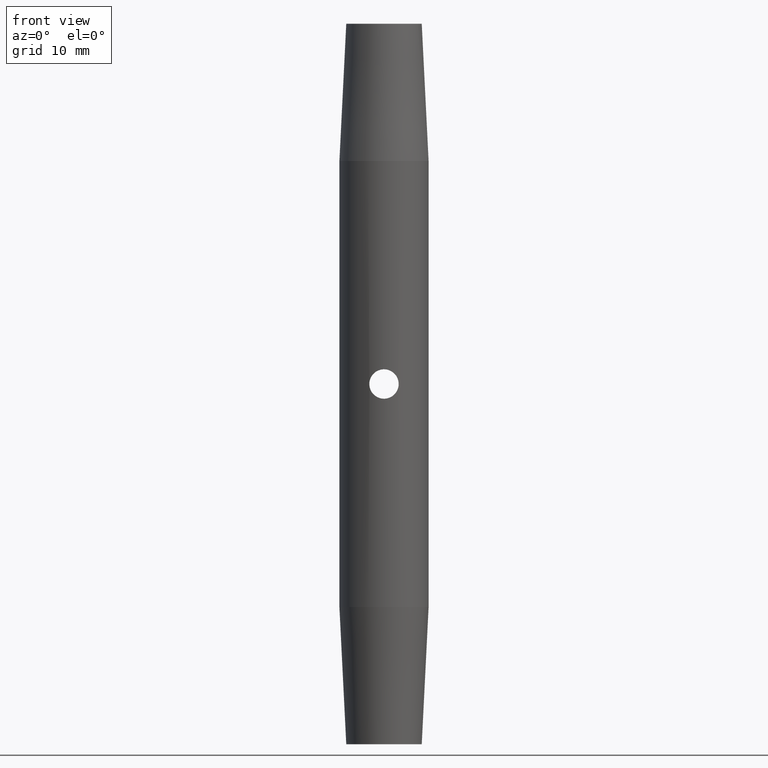
[diagram: clean part render]
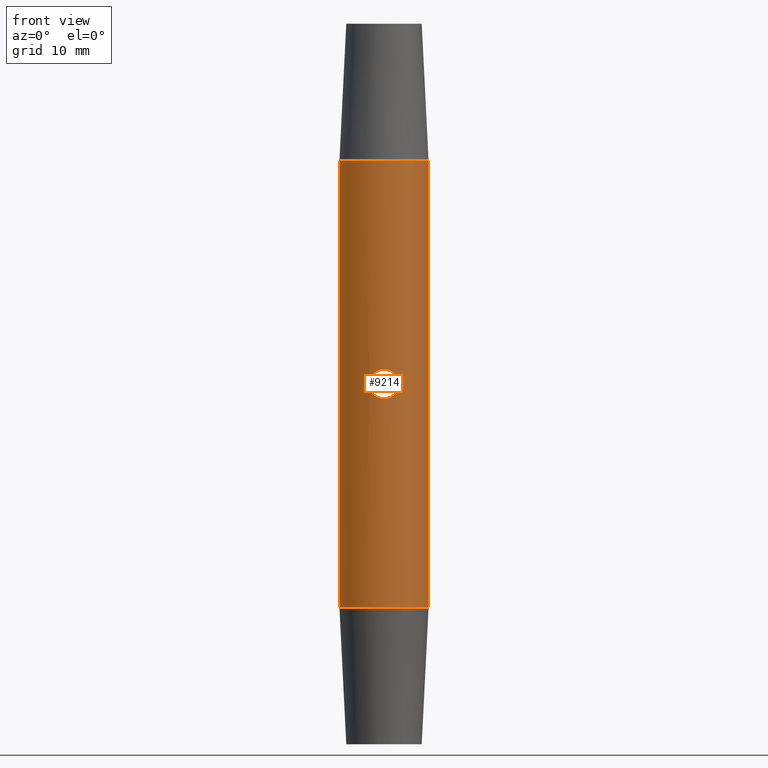
[diagram: same view with one face highlighted and labeled with its STEP entity id]
A machine part, front view. The second image highlights one B-rep face of the part: STEP entity #9214.
In plain terms, the highlighted cylindrical surface (partial cylindrical patch) has radius 6.5 mm, axis along (-0, -0, 1).
Its self-contained STEP definition (entity closure, byte-faithful):
#31 = CARTESIAN_POINT ( 'NONE',  ( 2.136053137017067900, -6.139066761606343900, 0.2826183904465224300 ) ) ;
#295 = CARTESIAN_POINT ( 'NONE',  ( -0.2837175713778293300, -6.495279511326575800, 2.135846140786788800 ) ) ;
#833 = FACE_OUTER_BOUND ( 'NONE', #3441, .T. ) ;
#884 = CARTESIAN_POINT ( 'NONE',  ( 2.149930075649253000, -6.134150362949041500, 0.1424287778713152800 ) ) ;
#972 = CARTESIAN_POINT ( 'NONE',  ( 1.930628806447624200, -6.206926631353418600, -0.9566819567461860600 ) ) ;
#980 = CYLINDRICAL_SURFACE ( 'NONE', #1329, 6.499999999999992000 ) ;
#1129 = CARTESIAN_POINT ( 'NONE',  ( -6.499999999999992000, 7.960204194457785600E-016, -32.49999999999999300 ) ) ;
#1230 = CARTESIAN_POINT ( 'NONE',  ( -2.080634814910881800, -6.158069373066875400, 0.5599242507394842600 ) ) ;
#1311 = CARTESIAN_POINT ( 'NONE',  ( -5.858203523481143600E-017, -6.499999999999992000, 2.149999999999999900 ) ) ;
#1316 = CARTESIAN_POINT ( 'NONE',  ( -5.858203523481143600E-017, -6.499999999999992000, 2.149999999999999900 ) ) ;
#1329 = AXIS2_PLACEMENT_3D ( 'NONE', #4301, #12257, #12382 ) ;
#1827 = VERTEX_POINT ( 'NONE', #7687 ) ;
#1861 = CARTESIAN_POINT ( 'NONE',  ( 2.632168849081333400E-016, -6.499999999999992000, -2.149999999999999900 ) ) ;
#1901 = CARTESIAN_POINT ( 'NONE',  ( 1.708605082650243700, -6.271936695402798600, -1.312490801747862500 ) ) ;
#1943 = CARTESIAN_POINT ( 'NONE',  ( 2.080452959078196200, -6.158131144485558700, 0.5606350362239386200 ) ) ;
#2037 = CARTESIAN_POINT ( 'NONE',  ( 2.135833899052039400, -6.139142549163156400, -0.2839226894027731500 ) ) ;
#2251 = CARTESIAN_POINT ( 'NONE',  ( -0.9556958847585129700, -6.430687745845250300, -1.931031269506810100 ) ) ;
#2294 = EDGE_CURVE ( 'NONE', #5098, #2816, #9423, .T. ) ;
#2786 = VERTEX_POINT ( 'NONE', #12439 ) ;
#2816 = VERTEX_POINT ( 'NONE', #3350 ) ;
#2864 = CARTESIAN_POINT ( 'NONE',  ( 2.150069402271626900, -6.134101529226946100, -0.1403098441394842200 ) ) ;
#2902 = CARTESIAN_POINT ( 'NONE',  ( -5.858203523481143600E-017, -6.499999999999992000, 2.149999999999999900 ) ) ;
#2914 = VECTOR ( 'NONE', #6288, 1000.000000000000000 ) ;
#3034 = CARTESIAN_POINT ( 'NONE',  ( 2.038629456106273000, -6.172291087384883700, 0.6971771710735154000 ) ) ;
#3123 = CARTESIAN_POINT ( 'NONE',  ( -0.5599126995722844000, -6.477318068415740100, 2.080584573210141600 ) ) ;
#3255 = CARTESIAN_POINT ( 'NONE',  ( -2.039469192933071700, -6.172019329726365900, -0.6950463840195015800 ) ) ;
#3259 = EDGE_CURVE ( 'NONE', #2816, #12753, #9087, .T. ) ;
#3301 = CARTESIAN_POINT ( 'NONE',  ( -1.717598139635303500, -6.272234038404032900, 1.322882965475803200 ) ) ;
#3307 = B_SPLINE_CURVE_WITH_KNOTS ( 'NONE', 3,
 ( #4226, #12309, #9341, #2251, #8339, #4143, #9381, #12394, #6306, #3255, #6219, #4179, #11211, #12226, #4270, #1230, #5306, #9290, #3301, #5185, #8292, #11383, #11343, #6348, #3123, #295, #7352, #1311 ),
 .UNSPECIFIED., .F., .F.,
 ( 4, 2, 2, 2, 2, 2, 2, 2, 2, 2, 2, 2, 2, 4 ),
 ( 0.006769902697995594900, 0.007615923615876387400, 0.008038934074816784000, 0.008461944533757179800, 0.009307965451637971500, 0.009730975910578369000, 0.01015398636951876500, 0.01057699682845916100, 0.01100000728739955800, 0.01184602820528035000, 0.01226903866422074600, 0.01269204912316114100, 0.01311505958210153500, 0.01353807004104193100 ),
 .UNSPECIFIED. ) ;
#3342 = CARTESIAN_POINT ( 'NONE',  ( 6.499999999999992000, 0.0000000000000000000, 52.50000000000000000 ) ) ;
#3350 = CARTESIAN_POINT ( 'NONE',  ( -6.499999999999992000, 7.960204194457785600E-016, 32.50000000000000000 ) ) ;
#3441 = EDGE_LOOP ( 'NONE', ( #4258, #12489, #8412, #8591 ) ) ;
#3664 = FACE_BOUND ( 'NONE', #6242, .T. ) ;
#3918 = CARTESIAN_POINT ( 'NONE',  ( 0.1410110625344688000, -6.499999999999992000, -2.149999999999999900 ) ) ;
#3960 = CARTESIAN_POINT ( 'NONE',  ( 0.6970388570635273100, -6.463846511277231400, 2.038741775253713600 ) ) ;
#4003 = CARTESIAN_POINT ( 'NONE',  ( 0.1431426844071816100, -6.499999999999992000, 2.149999999999999900 ) ) ;
#4052 = CARTESIAN_POINT ( 'NONE',  ( 0.2835619164077937700, -6.495309220233926000, -2.135939701246574200 ) ) ;
#4133 = AXIS2_PLACEMENT_3D ( 'NONE', #7137, #10266, #11118 ) ;
#4143 = CARTESIAN_POINT ( 'NONE',  ( -1.313623294186286400, -6.366972785591308100, -1.707755825128897300 ) ) ;
#4179 = CARTESIAN_POINT ( 'NONE',  ( -2.135686177980902700, -6.139193761005866900, -0.2848503949474813200 ) ) ;
#4207 = CARTESIAN_POINT ( 'NONE',  ( -6.499999999999992000, 7.960204194457785600E-016, 52.50000000000000000 ) ) ;
#4226 = CARTESIAN_POINT ( 'NONE',  ( 2.632168849081333400E-016, -6.499999999999992000, -2.149999999999999900 ) ) ;
#4258 = ORIENTED_EDGE ( 'NONE', *, *, #2294, .F. ) ;
#4270 = CARTESIAN_POINT ( 'NONE',  ( -2.136103442922868000, -6.139048926149439600, 0.2821674692775179000 ) ) ;
#4301 = CARTESIAN_POINT ( 'NONE',  ( 0.0000000000000000000, 0.0000000000000000000, 52.50000000000000000 ) ) ;
#4911 = ORIENTED_EDGE ( 'NONE', *, *, #11888, .T. ) ;
#4917 = CARTESIAN_POINT ( 'NONE',  ( 1.717704022713822500, -6.272196402200314900, 1.322681391962639900 ) ) ;
#4962 = CARTESIAN_POINT ( 'NONE',  ( 1.313126629521375700, -6.367082874913869300, 1.708174026930490400 ) ) ;
#5007 = CARTESIAN_POINT ( 'NONE',  ( 2.080427587327031300, -6.158139226842307900, -0.5605529339733865700 ) ) ;
#5098 = VERTEX_POINT ( 'NONE', #1129 ) ;
#5185 = CARTESIAN_POINT ( 'NONE',  ( -1.422071546360474900, -6.343341258160405600, 1.618526550427302100 ) ) ;
#5306 = CARTESIAN_POINT ( 'NONE',  ( -2.038791797579653200, -6.172238540355349000, 0.6967648118040379300 ) ) ;
#5891 = CARTESIAN_POINT ( 'NONE',  ( 0.2836998458803923200, -6.495280476488022500, 2.135849089704356300 ) ) ;
#5945 = ORIENTED_EDGE ( 'NONE', *, *, #10681, .T. ) ;
#6219 = CARTESIAN_POINT ( 'NONE',  ( -2.080350537539621800, -6.158165077923021300, -0.5607466801319626000 ) ) ;
#6242 = EDGE_LOOP ( 'NONE', ( #4911, #5945 ) ) ;
#6288 = DIRECTION ( 'NONE',  ( -0.0000000000000000000, -0.0000000000000000000, 1.000000000000000000 ) ) ;
#6306 = CARTESIAN_POINT ( 'NONE',  ( -1.876433829619130300, -6.224309187758467300, -1.087010737070773800 ) ) ;
#6348 = CARTESIAN_POINT ( 'NONE',  ( -0.6970658977427394200, -6.463842540400370300, 2.038728622984305300 ) ) ;
#6607 = VERTEX_POINT ( 'NONE', #1316 ) ;
#6918 = CARTESIAN_POINT ( 'NONE',  ( 1.422571846360569200, -6.343226942676546200, 1.618073742298277200 ) ) ;
#6960 = CARTESIAN_POINT ( 'NONE',  ( 0.9550455782785870500, -6.430779655342050200, -1.931334093783337900 ) ) ;
#7003 = CARTESIAN_POINT ( 'NONE',  ( 1.080887417190897500, -6.410588692552543900, -1.863795769745597800 ) ) ;
#7134 = VECTOR ( 'NONE', #8289, 1000.000000000000000 ) ;
#7137 = CARTESIAN_POINT ( 'NONE',  ( 0.0000000000000000000, 0.0000000000000000000, 32.50000000000000000 ) ) ;
#7199 = AXIS2_PLACEMENT_3D ( 'NONE', #7416, #9446, #7505 ) ;
#7352 = CARTESIAN_POINT ( 'NONE',  ( -0.1431059920975701600, -6.499999999999992900, 2.150000000000000800 ) ) ;
#7416 = CARTESIAN_POINT ( 'NONE',  ( 0.0000000000000000000, 0.0000000000000000000, -32.49999999999999300 ) ) ;
#7505 = DIRECTION ( 'NONE',  ( 1.000000000000000000, 0.0000000000000000000, 0.0000000000000000000 ) ) ;
#7687 = CARTESIAN_POINT ( 'NONE',  ( 6.499999999999992000, 0.0000000000000000000, -32.49999999999999300 ) ) ;
#7937 = CARTESIAN_POINT ( 'NONE',  ( 1.863895266024098800, -6.227552944527358700, -1.080674729242776300 ) ) ;
#8025 = CARTESIAN_POINT ( 'NONE',  ( 1.877350047147820600, -6.224010452058584200, 1.084583362012803600 ) ) ;
#8289 = DIRECTION ( 'NONE',  ( -0.0000000000000000000, -0.0000000000000000000, 1.000000000000000000 ) ) ;
#8292 = CARTESIAN_POINT ( 'NONE',  ( -1.312292688946304700, -6.367249417141011700, 1.708784488449723000 ) ) ;
#8339 = CARTESIAN_POINT ( 'NONE',  ( -1.081458268822810300, -6.410491137524795500, -1.863460257178908300 ) ) ;
#8412 = ORIENTED_EDGE ( 'NONE', *, *, #9677, .T. ) ;
#8591 = ORIENTED_EDGE ( 'NONE', *, *, #3259, .F. ) ;
#8727 = CARTESIAN_POINT ( 'NONE',  ( 6.499999999999992000, 0.0000000000000000000, 32.50000000000000000 ) ) ;
#8973 = CARTESIAN_POINT ( 'NONE',  ( 1.313192151975649100, -6.367063009403449500, -1.708092108743776100 ) ) ;
#9087 = CIRCLE ( 'NONE', #4133, 6.499999999999992000 ) ;
#9113 = CARTESIAN_POINT ( 'NONE',  ( 0.5618924071763241600, -6.477169609455222200, -2.080125642973462300 ) ) ;
#9214 = ADVANCED_FACE ( 'NONE', ( #833, #3664 ), #980, .T. ) ;
#9290 = CARTESIAN_POINT ( 'NONE',  ( -1.877177525297575100, -6.224066750141903800, 1.085042545665018800 ) ) ;
#9341 = CARTESIAN_POINT ( 'NONE',  ( -0.5665809357412591200, -6.480538872508152100, -2.092948063159675100 ) ) ;
#9381 = CARTESIAN_POINT ( 'NONE',  ( -1.421265646411545000, -6.343534063270117200, -1.619324088508184800 ) ) ;
#9423 = LINE ( 'NONE', #4207, #2914 ) ;
#9446 = DIRECTION ( 'NONE',  ( -0.0000000000000000000, -0.0000000000000000000, 1.000000000000000000 ) ) ;
#9677 = EDGE_CURVE ( 'NONE', #1827, #12753, #10166, .T. ) ;
#9998 = CARTESIAN_POINT ( 'NONE',  ( 0.6960925817440013500, -6.463937975397943300, -2.039023922380597900 ) ) ;
#10039 = CARTESIAN_POINT ( 'NONE',  ( 0.5599128821472839600, -6.477318244088718500, 2.080585134270887900 ) ) ;
#10131 = CARTESIAN_POINT ( 'NONE',  ( 2.039462880628017500, -6.172022112227900000, -0.6950964776126820100 ) ) ;
#10166 = LINE ( 'NONE', #3342, #7134 ) ;
#10266 = DIRECTION ( 'NONE',  ( -0.0000000000000000000, -0.0000000000000000000, 1.000000000000000000 ) ) ;
#10681 = EDGE_CURVE ( 'NONE', #2786, #6607, #3307, .T. ) ;
#10756 = CIRCLE ( 'NONE', #7199, 6.499999999999992000 ) ;
#10960 = CARTESIAN_POINT ( 'NONE',  ( 0.9570146267418261400, -6.430497484161661800, 1.930402600138970200 ) ) ;
#11118 = DIRECTION ( 'NONE',  ( 1.000000000000000000, 0.0000000000000000000, 0.0000000000000000000 ) ) ;
#11160 = B_SPLINE_CURVE_WITH_KNOTS ( 'NONE', 3,
 ( #2902, #4003, #5891, #10039, #3960, #10960, #12964, #4962, #6918, #4917, #8025, #3034, #1943, #31, #884, #2864, #2037, #5007, #10131, #972, #7937, #1901, #13096, #12089, #8973, #7003, #6960, #9998, #9113, #4052, #3918, #1861 ),
 .UNSPECIFIED., .F., .F.,
 ( 4, 2, 2, 2, 2, 2, 2, 2, 2, 2, 2, 2, 2, 2, 2, 4 ),
 ( 5.687331194003441600E-020, 0.0004231189186247249000, 0.0008462378372494497900, 0.001269356755874174600, 0.001692475674498899400, 0.002538713511748348300, 0.002961832430373072400, 0.003384951348997796600, 0.003808070267622520700, 0.004231189186247245700, 0.004654308104871970700, 0.005077427023496695700, 0.005500545942121419900, 0.005923664860746144900, 0.006346783779370869900, 0.006769902697995594900 ),
 .UNSPECIFIED. ) ;
#11211 = CARTESIAN_POINT ( 'NONE',  ( -2.150014531105381500, -6.134120761468026700, -0.1414548062730185400 ) ) ;
#11343 = CARTESIAN_POINT ( 'NONE',  ( -0.9569385643427804600, -6.430507743324702700, 1.930436180774943300 ) ) ;
#11383 = CARTESIAN_POINT ( 'NONE',  ( -1.079879609450160100, -6.410759492496829600, 1.864381012165183100 ) ) ;
#11888 = EDGE_CURVE ( 'NONE', #6607, #2786, #11160, .T. ) ;
#12089 = CARTESIAN_POINT ( 'NONE',  ( 1.420705723766252600, -6.343655439785731400, -1.619779365728075500 ) ) ;
#12226 = CARTESIAN_POINT ( 'NONE',  ( -2.149985446241757800, -6.134130955659975900, 0.1418961843414357800 ) ) ;
#12257 = DIRECTION ( 'NONE',  ( -0.0000000000000000000, -0.0000000000000000000, 1.000000000000000000 ) ) ;
#12309 = CARTESIAN_POINT ( 'NONE',  ( -0.2819498332632252600, -6.499999999999992900, -2.149999999999999900 ) ) ;
#12382 = DIRECTION ( 'NONE',  ( 1.000000000000000000, 0.0000000000000000000, 0.0000000000000000000 ) ) ;
#12394 = CARTESIAN_POINT ( 'NONE',  ( -1.719010651274220000, -6.271896378206331100, -1.321487247753600600 ) ) ;
#12439 = CARTESIAN_POINT ( 'NONE',  ( 2.632168849081333400E-016, -6.499999999999992000, -2.149999999999999900 ) ) ;
#12489 = ORIENTED_EDGE ( 'NONE', *, *, #12558, .T. ) ;
#12558 = EDGE_CURVE ( 'NONE', #5098, #1827, #10756, .T. ) ;
#12753 = VERTEX_POINT ( 'NONE', #8727 ) ;
#12964 = CARTESIAN_POINT ( 'NONE',  ( 1.080147341580001100, -6.410719741312770600, 1.864253676921611600 ) ) ;
#13096 = CARTESIAN_POINT ( 'NONE',  ( 1.618718685741636000, -6.296039938619842700, -1.421914119632937000 ) ) ;